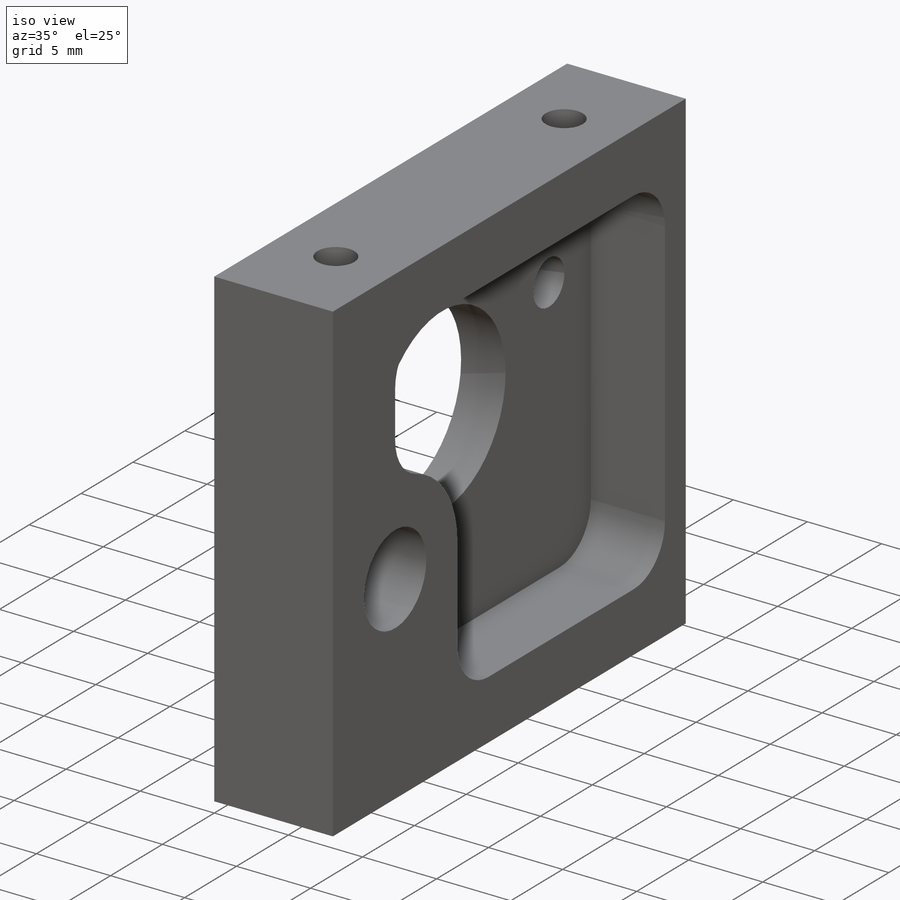
[diagram: iso view]
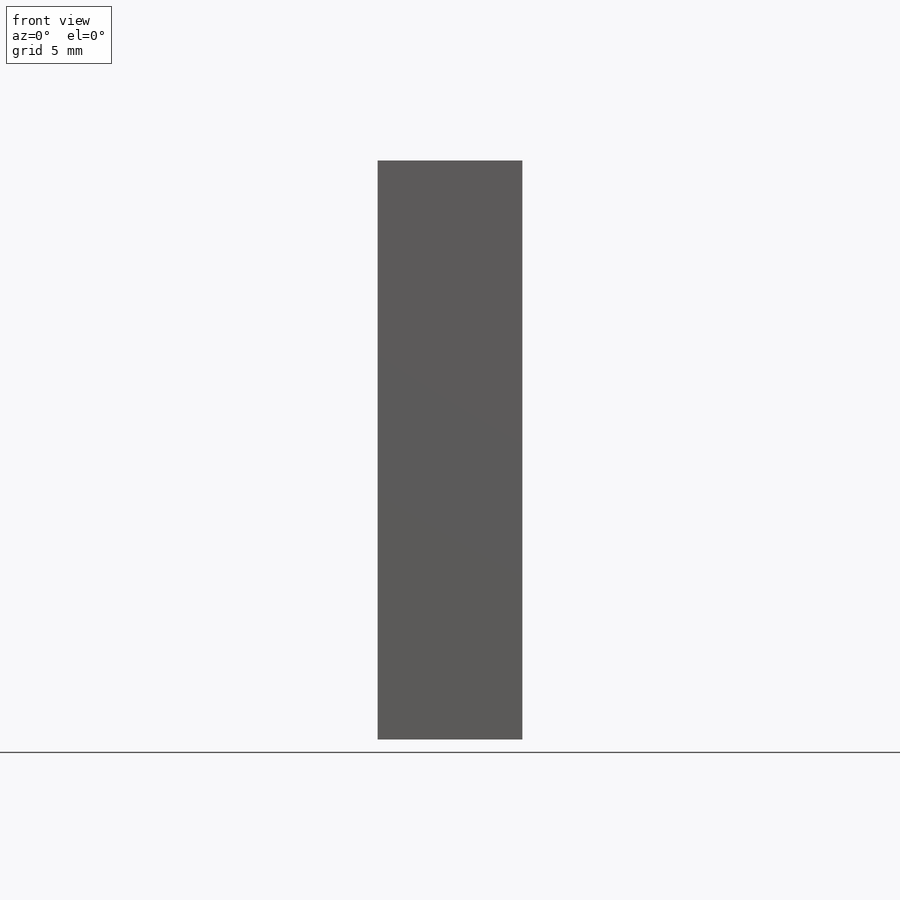
[diagram: front view]
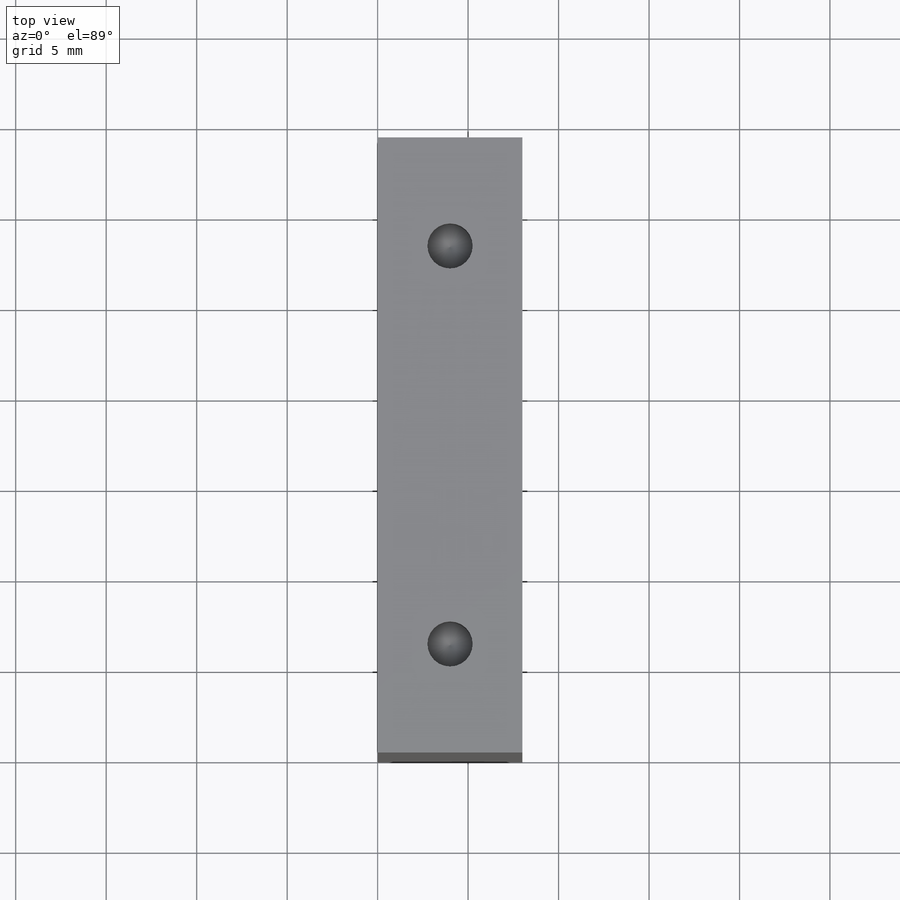
[diagram: top view]
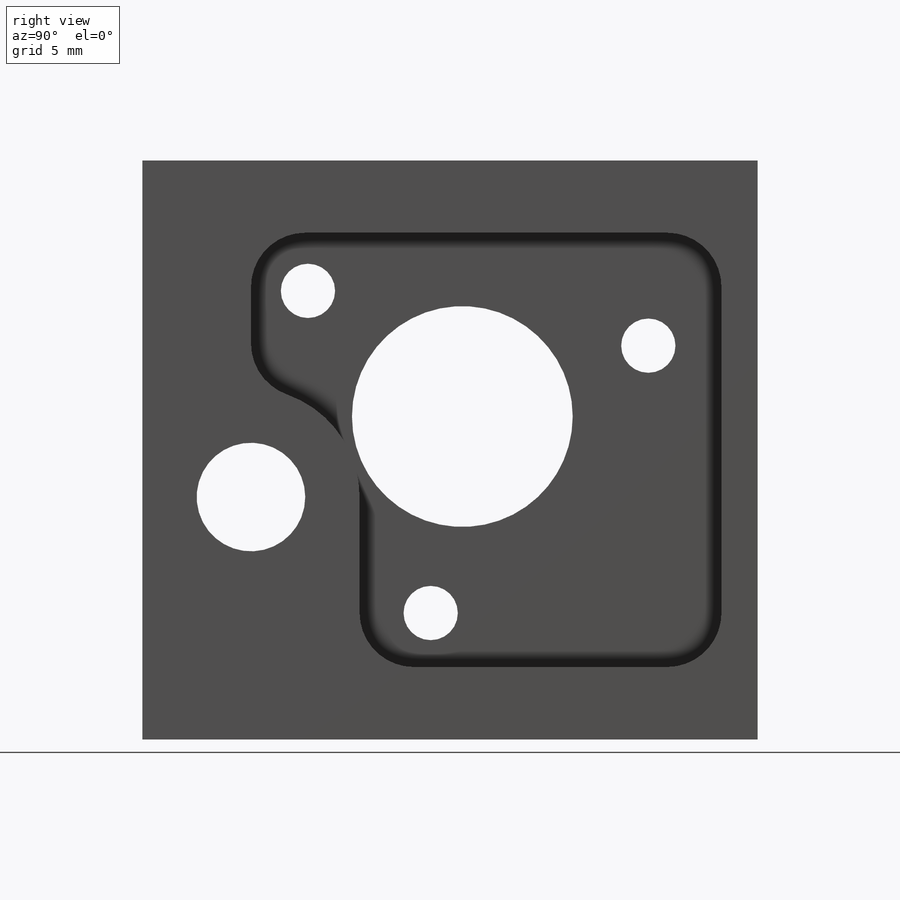
[diagram: right view]
SOLIDWORKS PART (.sldprt)
format: sldprt  version: not decoded by parser v0  size: 292,864 bytes
history: native  units: mm
features: sketch x7, cut_extrude x2, hole x2, material x1, extrude x1, pattern_circular x1 (+11 scaffold rows collapsed)
feature tree (25):
  scaffold x11  (default folders/planes/origin — collapsed)
  material  "Material <not specified>"
  sketch  "Sketch1"  dims[D1=32.0mm D2=34.0mm]
  extrude  "Boss-Extrude1"  Depth=8mm
  sketch  "Sketch2"  dims[c1.D2=12.2mm c1.D3=3.0mm c1.D6=6.0mm c1.D1=12.5mm c1.D4=~21.030779mm c2.D4=20.0deg c2.D5=11.0mm c2.D7=17.85mm c2.D8=18.25mm c2.D9=~6.033996mm c3.D7=6.0mm c3.D8=13.4mm c3.D9=~17.846262mm c3.D4=17.85mm]
  cut_extrude  "Cut-Extrude1"  [1 undecoded]
  pattern_circular  "CirPattern1"  Count=3 Angle=120deg
  sketch  "Sketch3"  dims[D4=3.0mm D5=3.0mm D1=2.0mm D2=4.0mm D3=4.0mm D6=6.0mm D7=12.0mm]
  cut_extrude  "Cut-Extrude2"  Depth=5mm
  hole  "Tap Drill for M3x0.5 Tap1"  Diameter=2.5mm Depth=3mm
  sketch  "Sketch5"  dims[D1=4.0mm D2=6.0mm D3=6.0mm D4=22.0mm]
  sketch  "Sketch4"  dims[hole-wizard template sketch: 47 standard entries collapsed; hole parameters kept: c15.Hole Depth=3.0mm c15.D3=~14.816244mm c15.Drill Angle=118.0deg]
  hole  "Tap Drill for M3x0.5 Tap2"  Diameter=2.5mm Depth=3mm
  sketch  "Sketch7"  dims[D1=6.0mm D2=6.0mm D3=4.0mm]
  sketch  "Sketch6"  dims[hole-wizard template sketch: 47 standard entries collapsed; hole parameters kept: c15.Hole Depth=3.0mm c15.D3=~14.816244mm c15.Drill Angle=118.0deg]
decode coverage: 12 of 13 modeling features carry decoded parameters
note: ~ marks probable driven/reference dimensions
note: 1 parameter value undecoded
note: suppression state not decoded; provenance and decode notes live in map.json
